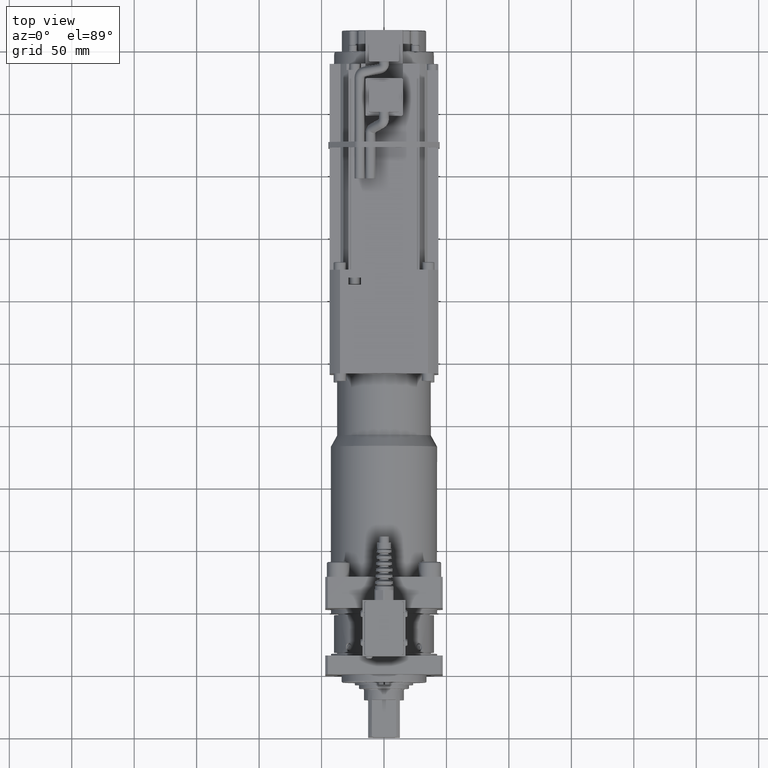
[diagram: clean part render]
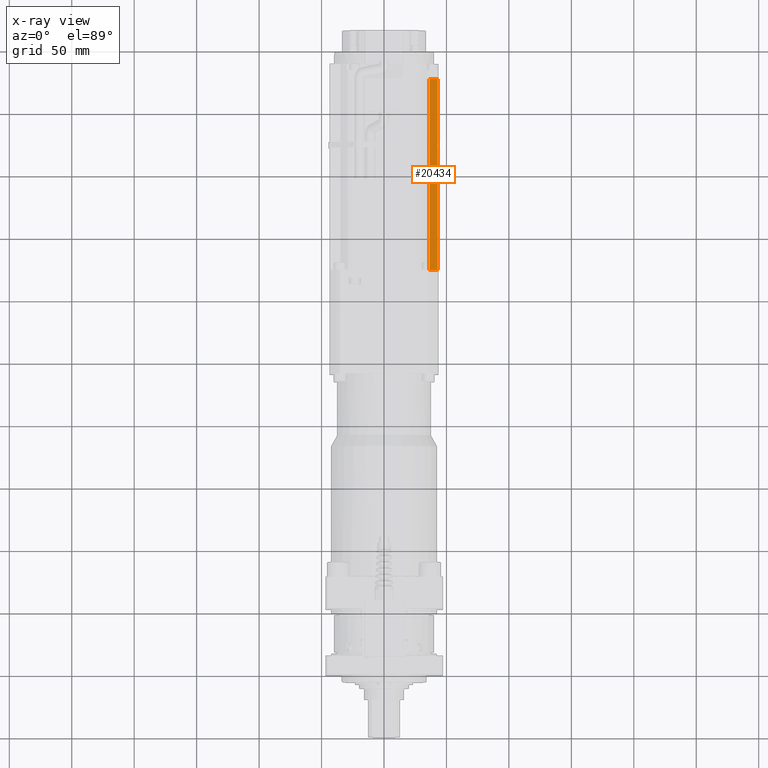
[diagram: x-ray — body ghosted, one internal face saturated and labeled with its STEP entity id]
A machine part, top view, then the same camera in x-ray: the body is ghosted and one INTERNAL B-rep face — a face not visible from any outside direction — is saturated and labeled: STEP entity #20434.
In plain terms, the highlighted planar face has unit normal (-0, 0, 1).
Its self-contained STEP definition (entity closure, byte-faithful):
#933=PLANE('',#22387);
#2188=FACE_OUTER_BOUND('',#3409,.T.);
#3409=EDGE_LOOP('',(#17540,#17541,#17542,#17543));
#5692=LINE('',#35128,#7485);
#5696=LINE('',#35138,#7489);
#5698=LINE('',#35146,#7491);
#5750=LINE('',#35296,#7543);
#7485=VECTOR('',#27088,10.);
#7489=VECTOR('',#27096,10.);
#7491=VECTOR('',#27104,10.);
#7543=VECTOR('',#27230,10.);
#9657=VERTEX_POINT('',#35125);
#9658=VERTEX_POINT('',#35127);
#9662=VERTEX_POINT('',#35137);
#9665=VERTEX_POINT('',#35144);
#12367=EDGE_CURVE('',#9658,#9657,#5692,.T.);
#12372=EDGE_CURVE('',#9662,#9658,#5696,.T.);
#12376=EDGE_CURVE('',#9665,#9657,#5698,.T.);
#12449=EDGE_CURVE('',#9662,#9665,#5750,.T.);
#17540=ORIENTED_EDGE('',*,*,#12449,.F.);
#17541=ORIENTED_EDGE('',*,*,#12372,.T.);
#17542=ORIENTED_EDGE('',*,*,#12367,.T.);
#17543=ORIENTED_EDGE('',*,*,#12376,.F.);
#20434=ADVANCED_FACE('',(#2188),#933,.F.);
#22387=AXIS2_PLACEMENT_3D('',#35295,#27228,#27229);
#27088=DIRECTION('',(-3.96750887945431E-16,1.,-1.03323211470152E-16));
#27096=DIRECTION('',(-1.,-3.96750887945432E-16,-2.55351295663786E-15));
#27104=DIRECTION('',(-1.,-3.96750887945432E-16,-2.55351295663786E-15));
#27228=DIRECTION('center_axis',(-2.55351295663786E-15,1.03323211470151E-16,
1.));
#27229=DIRECTION('ref_axis',(-3.96750887945431E-16,1.,-1.03323211470152E-16));
#27230=DIRECTION('',(-3.96750887945431E-16,1.,-1.03323211470152E-16));
#35125=CARTESIAN_POINT('',(36.4999999999999,477.,27.0000000000001));
#35127=CARTESIAN_POINT('',(36.4999999999999,324.,27.0000000000001));
#35128=CARTESIAN_POINT('',(36.4999999999999,477.,27.0000000000001));
#35137=CARTESIAN_POINT('',(42.8999999999999,324.,27.0000000000001));
#35138=CARTESIAN_POINT('',(43.4999999999999,324.,27.0000000000001));
#35144=CARTESIAN_POINT('',(42.8999999999999,477.,27.0000000000001));
#35146=CARTESIAN_POINT('',(43.4999999999999,477.,27.0000000000001));
#35295=CARTESIAN_POINT('Origin',(43.4999999999999,324.,27.0000000000001));
#35296=CARTESIAN_POINT('',(42.8999999999999,318.,27.0000000000001));